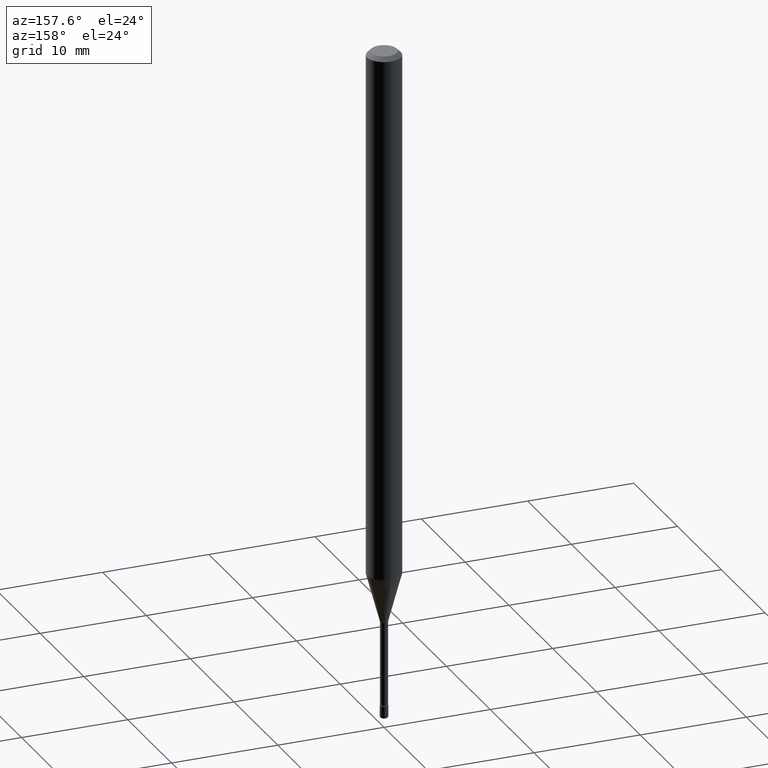
[diagram: clean part render]
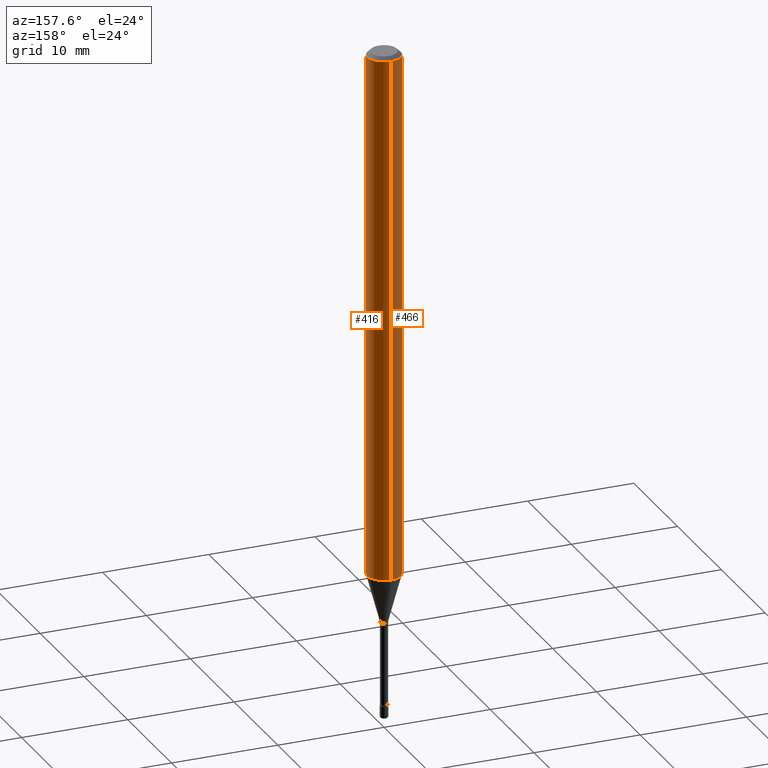
[diagram: same view with one multi-face feature highlighted, each face labeled with its STEP entity id]
A machine part, auxiliary view. The highlighted faces form ONE feature: a constant-radius fillet chain: 2 tangent blend faces with common blend radius 1.5875 mm. The faces share edges in the B-rep.
Their STEP definitions:
[1] entity #416 (Cylinder):
#5 = AXIS2_PLACEMENT_3D ( 'NONE', #564, #521, #468 ) ;
#7 = EDGE_CURVE ( 'NONE', #29, #292, #561, .T. ) ;
#10 = CARTESIAN_POINT ( 'NONE',  ( -4.364351673553916201E-16, -0.06250000000000000000, 6.962907463373856563E-16 ) ) ;
#16 = EDGE_CURVE ( 'NONE', #86, #406, #130, .T. ) ;
#17 = AXIS2_PLACEMENT_3D ( 'NONE', #345, #294, #73 ) ;
#23 = CARTESIAN_POINT ( 'NONE',  ( 4.440892098501108353E-16, 0.06249999999999995143, -0.01500000000000024578 ) ) ;
#29 = VERTEX_POINT ( 'NONE', #300 ) ;
#68 = DIRECTION ( 'NONE',  ( -6.982962677686265922E-15, -1.000000000000000000, 3.491477559138233884E-15 ) ) ;
#73 = DIRECTION ( 'NONE',  ( -6.982962677686265922E-15, -1.000000000000000000, 3.483106191921935554E-15 ) ) ;
#86 = VERTEX_POINT ( 'NONE', #454 ) ;
#102 = ORIENTED_EDGE ( 'NONE', *, *, #7, .F. ) ;
#106 = CARTESIAN_POINT ( 'NONE',  ( 4.440892098501102436E-16, 0.06249999999999313743, -1.959368740913667306 ) ) ;
#109 = FACE_OUTER_BOUND ( 'NONE', #522, .T. ) ;
#130 = CIRCLE ( 'NONE', #5, 0.06250000000000000000 ) ;
#153 = DIRECTION ( 'NONE',  ( -2.445471445538969048E-29, 3.491477559138235068E-15, 1.000000000000000000 ) ) ;
#155 = DIRECTION ( 'NONE',  ( -2.445471445538969048E-29, 3.491477559138235068E-15, 1.000000000000000000 ) ) ;
#250 = AXIS2_PLACEMENT_3D ( 'NONE', #293, #153, #68 ) ;
#260 = EDGE_CURVE ( 'NONE', #86, #29, #462, .T. ) ;
#292 = VERTEX_POINT ( 'NONE', #23 ) ;
#293 = CARTESIAN_POINT ( 'NONE',  ( -1.169113584055446105E-44, 1.669184350826100908E-30, 4.780733988912460139E-16 ) ) ;
#294 = DIRECTION ( 'NONE',  ( -2.445471445538969048E-29, 3.491477559138235068E-15, 1.000000000000000000 ) ) ;
#297 = ORIENTED_EDGE ( 'NONE', *, *, #260, .F. ) ;
#298 = ORIENTED_EDGE ( 'NONE', *, *, #16, .T. ) ;
#300 = CARTESIAN_POINT ( 'NONE',  ( -4.364351673553912750E-16, -0.06250000000000005551, -0.01499999999999981036 ) ) ;
#345 = CARTESIAN_POINT ( 'NONE',  ( 3.668207168308460227E-31, -5.237216338707361944E-17, -0.01500000000000002720 ) ) ;
#386 = VECTOR ( 'NONE', #543, 39.37007874015748143 ) ;
#406 = VERTEX_POINT ( 'NONE', #106 ) ;
#416 = ADVANCED_FACE ( 'NONE', ( #109 ), #518, .T. ) ;
#421 = ORIENTED_EDGE ( 'NONE', *, *, #475, .T. ) ;
#430 = LINE ( 'NONE', #559, #508 ) ;
#454 = CARTESIAN_POINT ( 'NONE',  ( -4.364351673553436475E-16, -0.06250000000000684175, -1.959368740913666640 ) ) ;
#462 = LINE ( 'NONE', #10, #386 ) ;
#468 = DIRECTION ( 'NONE',  ( -6.982962677686265922E-15, -1.000000000000000000, 4.370956789862821150E-15 ) ) ;
#475 = EDGE_CURVE ( 'NONE', #406, #292, #430, .T. ) ;
#508 = VECTOR ( 'NONE', #155, 39.37007874015748143 ) ;
#518 = CYLINDRICAL_SURFACE ( 'NONE', #250, 0.06250000000000000000 ) ;
#521 = DIRECTION ( 'NONE',  ( -2.445471445538969048E-29, 3.491477559138235068E-15, 1.000000000000000000 ) ) ;
#522 = EDGE_LOOP ( 'NONE', ( #298, #421, #102, #297 ) ) ;
#543 = DIRECTION ( 'NONE',  ( -2.445471445538969048E-29, 3.491477559138235068E-15, 1.000000000000000000 ) ) ;
#559 = CARTESIAN_POINT ( 'NONE',  ( 4.440892098500625669E-16, 0.06250000000000000000, 2.598560514451063715E-16 ) ) ;
#561 = CIRCLE ( 'NONE', #17, 0.06250000000000000000 ) ;
#564 = CARTESIAN_POINT ( 'NONE',  ( 4.791580307186014448E-29, -6.841091988977007284E-15, -1.959368740913666862 ) ) ;
[2] entity #466 (Cylinder):
#10 = CARTESIAN_POINT ( 'NONE',  ( -4.364351673553916201E-16, -0.06250000000000000000, 6.962907463373856563E-16 ) ) ;
#23 = CARTESIAN_POINT ( 'NONE',  ( 4.440892098501108353E-16, 0.06249999999999995143, -0.01500000000000024578 ) ) ;
#29 = VERTEX_POINT ( 'NONE', #300 ) ;
#48 = CARTESIAN_POINT ( 'NONE',  ( 4.791580307186014448E-29, -6.841091988977007284E-15, -1.959368740913666862 ) ) ;
#53 = ORIENTED_EDGE ( 'NONE', *, *, #260, .T. ) ;
#86 = VERTEX_POINT ( 'NONE', #454 ) ;
#89 = CIRCLE ( 'NONE', #526, 0.06250000000000000000 ) ;
#106 = CARTESIAN_POINT ( 'NONE',  ( 4.440892098501102436E-16, 0.06249999999999313743, -1.959368740913667306 ) ) ;
#138 = CIRCLE ( 'NONE', #451, 0.06250000000000000000 ) ;
#155 = DIRECTION ( 'NONE',  ( -2.445471445538969048E-29, 3.491477559138235068E-15, 1.000000000000000000 ) ) ;
#167 = EDGE_CURVE ( 'NONE', #292, #29, #138, .T. ) ;
#177 = EDGE_CURVE ( 'NONE', #406, #86, #89, .T. ) ;
#204 = CARTESIAN_POINT ( 'NONE',  ( -1.169113584055446105E-44, 1.669184350826100908E-30, 4.780733988912460139E-16 ) ) ;
#223 = DIRECTION ( 'NONE',  ( -2.445471445538969048E-29, 3.491477559138235068E-15, 1.000000000000000000 ) ) ;
#247 = FACE_OUTER_BOUND ( 'NONE', #511, .T. ) ;
#260 = EDGE_CURVE ( 'NONE', #86, #29, #462, .T. ) ;
#280 = ORIENTED_EDGE ( 'NONE', *, *, #177, .T. ) ;
#292 = VERTEX_POINT ( 'NONE', #23 ) ;
#295 = ORIENTED_EDGE ( 'NONE', *, *, #167, .F. ) ;
#299 = DIRECTION ( 'NONE',  ( -2.445471445538969048E-29, 3.491477559138235068E-15, 1.000000000000000000 ) ) ;
#300 = CARTESIAN_POINT ( 'NONE',  ( -4.364351673553912750E-16, -0.06250000000000005551, -0.01499999999999981036 ) ) ;
#310 = DIRECTION ( 'NONE',  ( -6.982962677686265922E-15, -1.000000000000000000, 3.483106191921935554E-15 ) ) ;
#337 = CYLINDRICAL_SURFACE ( 'NONE', #452, 0.06250000000000000000 ) ;
#364 = DIRECTION ( 'NONE',  ( -2.445471445538969048E-29, 3.491477559138235068E-15, 1.000000000000000000 ) ) ;
#386 = VECTOR ( 'NONE', #543, 39.37007874015748143 ) ;
#405 = DIRECTION ( 'NONE',  ( -6.982962677686265922E-15, -1.000000000000000000, 4.370956789862821150E-15 ) ) ;
#406 = VERTEX_POINT ( 'NONE', #106 ) ;
#430 = LINE ( 'NONE', #559, #508 ) ;
#451 = AXIS2_PLACEMENT_3D ( 'NONE', #453, #364, #310 ) ;
#452 = AXIS2_PLACEMENT_3D ( 'NONE', #204, #299, #472 ) ;
#453 = CARTESIAN_POINT ( 'NONE',  ( 3.668207168308460227E-31, -5.237216338707361944E-17, -0.01500000000000002720 ) ) ;
#454 = CARTESIAN_POINT ( 'NONE',  ( -4.364351673553436475E-16, -0.06250000000000684175, -1.959368740913666640 ) ) ;
#462 = LINE ( 'NONE', #10, #386 ) ;
#466 = ADVANCED_FACE ( 'NONE', ( #247 ), #337, .T. ) ;
#472 = DIRECTION ( 'NONE',  ( -6.982962677686265922E-15, -1.000000000000000000, 3.491477559138233884E-15 ) ) ;
#475 = EDGE_CURVE ( 'NONE', #406, #292, #430, .T. ) ;
#489 = ORIENTED_EDGE ( 'NONE', *, *, #475, .F. ) ;
#508 = VECTOR ( 'NONE', #155, 39.37007874015748143 ) ;
#511 = EDGE_LOOP ( 'NONE', ( #489, #280, #53, #295 ) ) ;
#526 = AXIS2_PLACEMENT_3D ( 'NONE', #48, #223, #405 ) ;
#543 = DIRECTION ( 'NONE',  ( -2.445471445538969048E-29, 3.491477559138235068E-15, 1.000000000000000000 ) ) ;
#559 = CARTESIAN_POINT ( 'NONE',  ( 4.440892098500625669E-16, 0.06250000000000000000, 2.598560514451063715E-16 ) ) ;